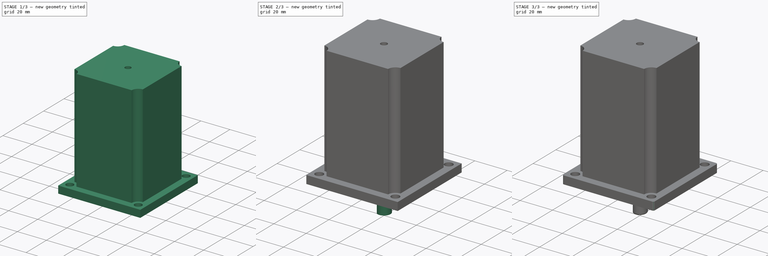
[diagram: build sequence overview — one tinted view per stage of 3, left to right]
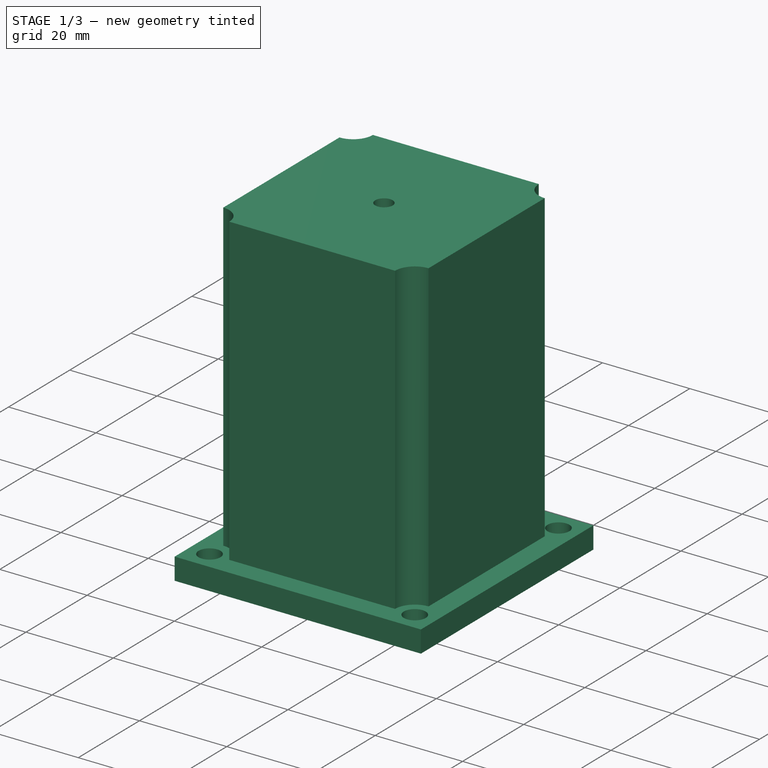
[diagram: stage 1 of 3 — iso view after this stage's code; geometry added in this stage tinted green]
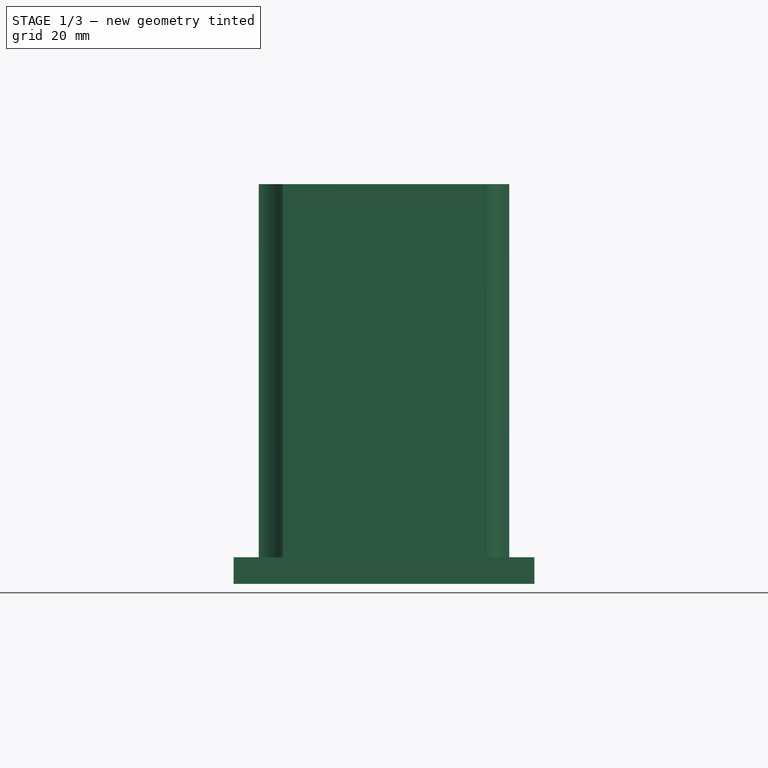
[diagram: stage 1 of 3 — front view after this stage's code; geometry added in this stage tinted green]
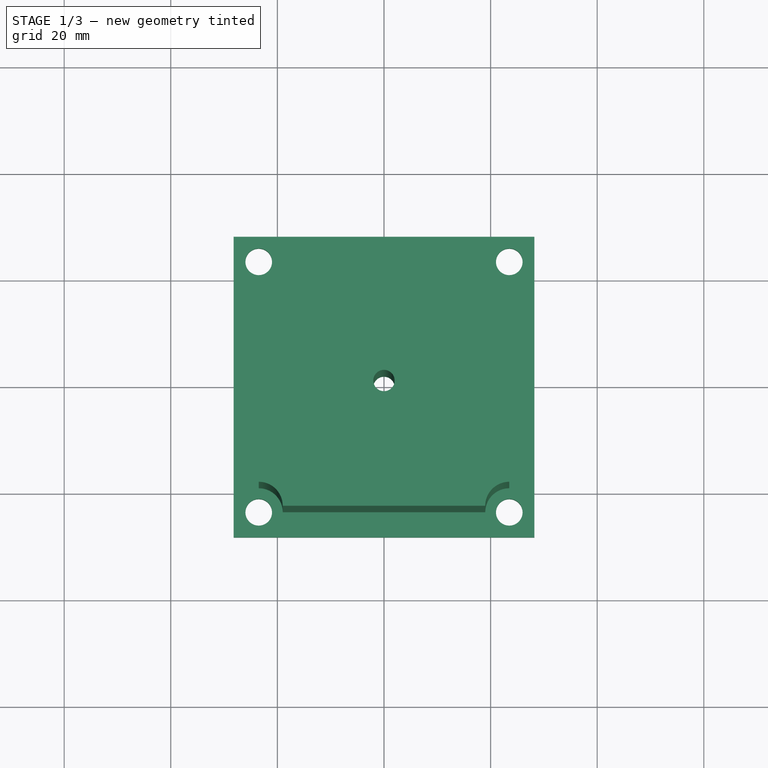
[diagram: stage 1 of 3 — top view after this stage's code; geometry added in this stage tinted green]
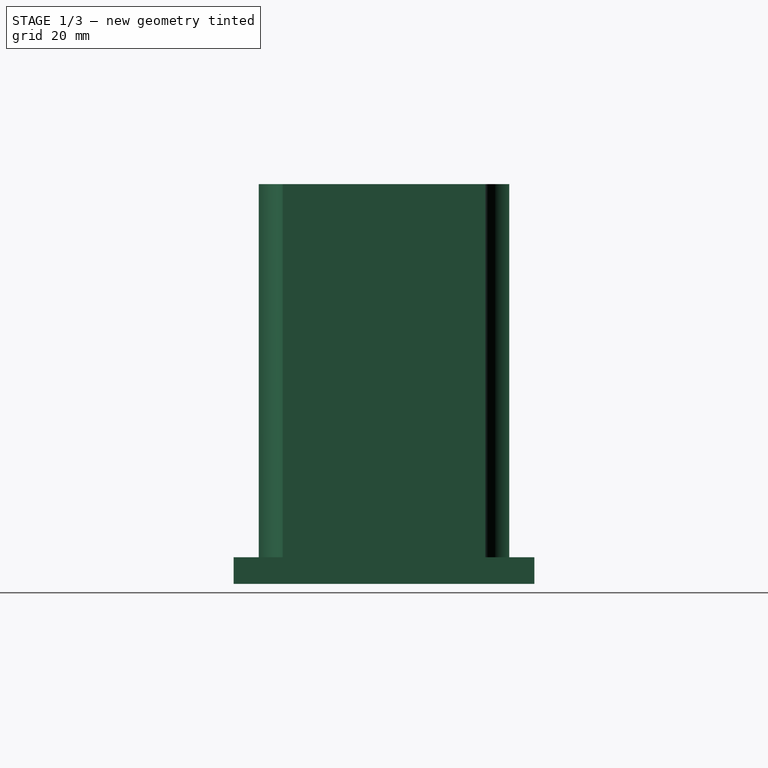
[diagram: stage 1 of 3 — right view after this stage's code; geometry added in this stage tinted green]
FCSTD DOCUMENT  (FreeCAD 0.19R24276 (Git))
Label: Nema_23_L76_temp
License: All rights reserved
LicenseURL: http://en.wikipedia.org/wiki/All_rights_reserved
objects: Sketcher::SketchObject×5, PartDesign::Pad×4, PartDesign::Fillet×2, PartDesign::Pocket×1, PartDesign::Body×1
note: 20 computed .brp shape members not serialized (recipe doc carries the construction recipe); baked Part::Feature solids carry a one-line shape summary decoded from their .brp

FEATURE [Sketcher::SketchObject] Sketch
  FullyConstrained = true
  MapMode = 5
  Support = -> [XY_Plane]
  sketch-geometry (15):
    g0: LineSegment StartX=23.5 StartY=23.5 StartZ=0 EndX=-23.5 EndY=23.5 EndZ=0
    g1: LineSegment StartX=-23.5 StartY=23.5 StartZ=0 EndX=-23.5 EndY=-23.5 EndZ=0
    g2: LineSegment StartX=-23.5 StartY=-23.5 StartZ=0 EndX=23.5 EndY=-23.5 EndZ=0
    g3: LineSegment StartX=23.5 StartY=-23.5 StartZ=0 EndX=23.5 EndY=23.5 EndZ=0
    g4: Circle CenterX=0 CenterY=0 CenterZ=0 NormalX=0 NormalY=0 NormalZ=1 AngleXU=0 Radius=33.234
    g5: LineSegment StartX=28.2 StartY=-28.2 StartZ=0 EndX=28.2 EndY=28.2 EndZ=0
    g6: LineSegment StartX=28.2 StartY=28.2 StartZ=0 EndX=-28.2 EndY=28.2 EndZ=0
    g7: LineSegment StartX=-28.2 StartY=28.2 StartZ=0 EndX=-28.2 EndY=-28.2 EndZ=0
    g8: LineSegment StartX=-28.2 StartY=-28.2 StartZ=0 EndX=28.2 EndY=-28.2 EndZ=0
    g9: Circle CenterX=0 CenterY=0 CenterZ=0 NormalX=0 NormalY=0 NormalZ=1 AngleXU=0 Radius=39.8808
    g10: Circle CenterX=-23.5 CenterY=23.5 CenterZ=0 NormalX=0 NormalY=0 NormalZ=1 AngleXU=0 Radius=2.5
    g11: Circle CenterX=23.5 CenterY=23.5 CenterZ=0 NormalX=0 NormalY=0 NormalZ=1 AngleXU=0 Radius=2.5
    g12: Circle CenterX=-23.5 CenterY=-23.5 CenterZ=0 NormalX=0 NormalY=0 NormalZ=1 AngleXU=0 Radius=2.5
    g13: Circle CenterX=23.5 CenterY=-23.5 CenterZ=0 NormalX=0 NormalY=0 NormalZ=1 AngleXU=0 Radius=2.5
    g14: Circle CenterX=0 CenterY=0 CenterZ=0 NormalX=0 NormalY=0 NormalZ=1 AngleXU=0 Radius=2
  constraints (38):
    c: Coincident(g0,g1)
    c: Coincident(g1,g2)
    c: Coincident(g2,g3)
    c: Coincident(g3,g0)
    c: Equal(g0,g1)
    c: Equal(g0,g2)
    c: Equal(g0,g3)
    c: PointOnObject(g0,g4)
    c: PointOnObject(g1,g4)
    c: PointOnObject(g2,g4)
    c: PointOnObject(g3,g4)
    c: Coincident(g4,g-1)
    c: Horizontal(g0)
    c: DistanceX(g2,g2) = 47
    c: Coincident(g5,g6)
    c: Coincident(g6,g7)
    c: Coincident(g7,g8)
    c: Coincident(g8,g5)
    c: Equal(g5,g6)
    c: Equal(g5,g7)
    c: Equal(g5,g8)
    c: PointOnObject(g5,g9)
    c: PointOnObject(g6,g9)
    c: PointOnObject(g7,g9)
    c: PointOnObject(g8,g9)
    c: Coincident(g9,g-1)
    c: DistanceX(g8,g8) = 56.4
    c: Horizontal(g8)
    c: Coincident(g10,g0)
    c: Coincident(g11,g0)
    c: Coincident(g12,g1)
    c: Coincident(g13,g2)
    c: Diameter(g10) = 5
    c: Equal(g10,g12)
    c: Equal(g10,g13)
    c: Equal(g10,g11)
    c: Coincident(g14,g-1)
    c: Diameter(g14) = 4
FEATURE [PartDesign::Pad] Pad
  Direction = (1,1,1)
  Length = 5
  Length2 = 100
  Profile = -> Sketch
  Type = 0
FEATURE [Sketcher::SketchObject] Sketch001
  FullyConstrained = false
  MapMode = 5
  Placement = pos=(0,0,5) rot=(0,0,1;0rad)
  Support = -> [Pad]
  sketch-geometry (40):
    g0: LineSegment StartX=28.2 StartY=28.2 StartZ=0 EndX=-28.2 EndY=28.2 EndZ=0
    g1: LineSegment StartX=-28.2 StartY=28.2 StartZ=0 EndX=-28.2 EndY=-19 EndZ=0
    g2: LineSegment StartX=-19 StartY=-28.2 StartZ=0 EndX=28.2 EndY=-28.2 EndZ=0
    g3: LineSegment StartX=28.2 StartY=-28.2 StartZ=0 EndX=28.2 EndY=28.2 EndZ=0
    g4: Circle CenterX=0 CenterY=0 CenterZ=0 NormalX=0 NormalY=0 NormalZ=1 AngleXU=0 Radius=39.8808
    g5: LineSegment StartX=23.5 StartY=23.5 StartZ=0 EndX=-23.5 EndY=23.5 EndZ=0
    g6: LineSegment StartX=-23.5 StartY=23.5 StartZ=0 EndX=-23.5 EndY=-23.5 EndZ=0
    g7: LineSegment StartX=-23.5 StartY=-23.5 StartZ=0 EndX=23.5 EndY=-23.5 EndZ=0
    g8: LineSegment StartX=23.5 StartY=-23.5 StartZ=0 EndX=23.5 EndY=23.5 EndZ=0
    g9: Circle CenterX=0 CenterY=0 CenterZ=0 NormalX=0 NormalY=0 NormalZ=1 AngleXU=0 Radius=33.234
    g10: Circle CenterX=-23.5 CenterY=23.5 CenterZ=0 NormalX=0 NormalY=0 NormalZ=1 AngleXU=0 Radius=4.5
    g11: LineSegment StartX=0 StartY=0 StartZ=0 EndX=-23.5 EndY=23.5 EndZ=0
    g12: ArcOfCircle CenterX=-23.5 CenterY=-23.5 CenterZ=0 NormalX=0 NormalY=0 NormalZ=1 AngleXU=0 Radius=4.5 StartAngle=1.3e-15 EndAngle=1.5708
    g13: ArcOfCircle CenterX=23.5 CenterY=-23.5 CenterZ=0 NormalX=0 NormalY=0 NormalZ=1 AngleXU=0 Radius=4.5 StartAngle=1.5708 EndAngle=3.14159
    g14: LineSegment StartX=-23.5 StartY=-19 StartZ=0 EndX=-28.2 EndY=-19 EndZ=0
    g15: LineSegment StartX=-19 StartY=-23.5 StartZ=0 EndX=-19 EndY=-28.2 EndZ=0
    g16: LineSegment StartX=-23.5 StartY=-23.5 StartZ=0 EndX=-19 EndY=-23.5 EndZ=0
    g17: ArcOfCircle CenterX=23.5 CenterY=-23.5 CenterZ=0 NormalX=0 NormalY=0 NormalZ=1 AngleXU=0 Radius=4.5 StartAngle=1.5708 EndAngle=3.14159
    g18: LineSegment StartX=23.5 StartY=-19 StartZ=0 EndX=28.2 EndY=-19 EndZ=0
    g19: LineSegment StartX=19 StartY=-23.5 StartZ=0 EndX=19 EndY=-28.2 EndZ=0
    g20: LineSegment StartX=23.5 StartY=-23.5 StartZ=0 EndX=19 EndY=-23.5 EndZ=0
    g21: LineSegment StartX=23.5 StartY=-23.5 StartZ=0 EndX=23.5 EndY=-19 EndZ=0
    g22: LineSegment StartX=-19 StartY=28.2 StartZ=0 EndX=28.2 EndY=28.2 EndZ=0
    g23: LineSegment StartX=-23.5 StartY=23.5 StartZ=0 EndX=23.5 EndY=23.5 EndZ=0
    g24: ArcOfCircle CenterX=-23.5 CenterY=23.5 CenterZ=0 NormalX=0 NormalY=0 NormalZ=1 AngleXU=0 Radius=4.5 StartAngle=4.71239 EndAngle=6.28319
    g25: LineSegment StartX=-23.5 StartY=19 StartZ=0 EndX=-28.2 EndY=19 EndZ=0
    g26: LineSegment StartX=-19 StartY=23.5 StartZ=0 EndX=-19 EndY=28.2 EndZ=0
    g27: LineSegment StartX=-23.5 StartY=23.5 StartZ=0 EndX=-19 EndY=23.5 EndZ=0
    g28: LineSegment StartX=23.5 StartY=23.5 StartZ=0 EndX=19 EndY=23.5 EndZ=0
    g29: LineSegment StartX=23.5 StartY=23.5 StartZ=0 EndX=23.5 EndY=19 EndZ=0
    g30: LineSegment StartX=-19 StartY=-23.5 StartZ=0 EndX=19 EndY=-23.5 EndZ=0
    g31: LineSegment StartX=23.5 StartY=-19 StartZ=0 EndX=23.5 EndY=19 EndZ=0
    g32: LineSegment StartX=19 StartY=23.5 StartZ=0 EndX=-19 EndY=23.5 EndZ=0
    g33: LineSegment StartX=-23.5 StartY=19 StartZ=0 EndX=-23.5 EndY=-19 EndZ=0
    g34: Circle CenterX=0 CenterY=0 CenterZ=0 NormalX=0 NormalY=0 NormalZ=1 AngleXU=0 Radius=2
    g35: LineSegment StartX=-23.5 StartY=-19 StartZ=0 EndX=-23.5 EndY=19 EndZ=0
    g36: LineSegment StartX=23.5 StartY=-19 StartZ=0 EndX=23.5 EndY=19 EndZ=0
    g37: LineSegment StartX=19 StartY=-23.5 StartZ=0 EndX=-19 EndY=-23.5 EndZ=0
    g38: ArcOfCircle CenterX=23.5 CenterY=23.5 CenterZ=0 NormalX=0 NormalY=0 NormalZ=1 AngleXU=0 Radius=4.5 StartAngle=3.14159 EndAngle=4.71239
    g39: LineSegment StartX=-19 StartY=23.5 StartZ=0 EndX=19 EndY=23.5 EndZ=0
  constraints (103):
    c: Coincident(g0,g1)
    c: Coincident(g2,g3)
    c: Coincident(g3,g0)
    c: Equal(g0,g3)
    c: PointOnObject(g0,g4)
    c: PointOnObject(g2,g4)
    c: PointOnObject(g3,g4)
    c: Coincident(g4,g-1)
    c: Horizontal(g0)
    c: Coincident(g5,g6)
    c: Coincident(g6,g7)
    c: Coincident(g7,g8)
    c: Coincident(g8,g5)
    c: Equal(g5,g6)
    c: Equal(g5,g7)
    c: Equal(g5,g8)
    c: PointOnObject(g5,g9)
    c: PointOnObject(g6,g9)
    c: PointOnObject(g7,g9)
    c: PointOnObject(g8,g9)
    c: Coincident(g9,g-1)
    c: Horizontal(g5)
    c: DistanceX(g7,g7) = 47
    c: Coincident(g10,g5)
    c: Coincident(g11,g-1)
    c: Coincident(g11,g5)
    c: Diameter(g10) = 9
    c: Coincident(g12,g6)
    c: Coincident(g13,g7)
    c: Equal(g10,g13)
    c: Horizontal(g14)
    c: Vertical(g14,g6)
    c: PointOnObject(g14,g12)
    c: Vertical(g15)
    c: Coincident(g16,g6)
    c: PointOnObject(g16,g12)
    c: Coincident(g15,g16)
    c: Horizontal(g16)
    c: Coincident(g15,g2)
    c: PointOnObject(g12,g6)
    c: PointOnObject(g12,g7)
    c: Coincident(g14,g1)
    c: Horizontal(g18)
    c: Vertical(g19)
    c: Coincident(g19,g20)
    c: Horizontal(g20)
    c: Coincident(g7,g17)
    c: Equal(g17,g12)
    c: Horizontal(g2,g19)
    c: Vertical(g2,g18)
    c: Coincident(g17,g18)
    c: Coincident(g17,g19)
    c: Horizontal(g17,g17)
    c: Horizontal(g2,g2)
    c: Vertical(g3)
    c: DistanceX(g1,g18) = 56.4
    c: Vertical(g1)
    c: Coincident(g21,g17)
    c: Coincident(g21,g17)
    c: Vertical(g21)
    c: PointOnObject(g13,g7)
    c: PointOnObject(g13,g8)
    c: Horizontal(g25)
    c: Vertical(g26)
    c: PointOnObject(g27,g24)
    c: Coincident(g26,g27)
    c: Horizontal(g27)
    c: Coincident(g26,g22)
    c: PointOnObject(g24,g23)
    c: Horizontal(g28)
    c: Vertical(g29)
    c: PointOnObject(g28,g23)
    c: Vertical(g25,g1)
    c: Equal(g12,g24)
    c: Coincident(g24,g25)
    c: Vertical(g24,g12)
    c: Coincident(g5,g23)
    c: Coincident(g5,g27)
    c: Coincident(g24,g5)
    c: Horizontal(g23)
    c: Vertical(g28,g13)
    c: Horizontal(g0,g22)
    c: Coincident(g30,g12)
    c: Coincident(g30,g13)
    c: Coincident(g31,g13)
    c: Coincident(g33,g24)
    c: Coincident(g32,g24)
    c: Coincident(g33,g12)
    c: Coincident(g34,g-1)
    c: Diameter(g34) = 4
    c: Coincident(g35,g12)
    c: Coincident(g35,g24)
    c: PointOnObject(g36,g8)
    c: Coincident(g36,g13)
    c: Coincident(g37,g13)
    c: Coincident(g37,g12)
    c: Coincident(g38,g5)
    c: PointOnObject(g38,g5)
    c: Equal(g24,g38)
    c: Coincident(g36,g38)
    c: Equal(g24,g10)
    c: Coincident(g39,g24)
    c: Coincident(g39,g38)
FEATURE [PartDesign::Pad] Pad001
  BaseFeature = -> Pad
  Direction = (1,1,1)
  Length = 70
  Length2 = 100
  Profile = -> Sketch001
  Type = 0
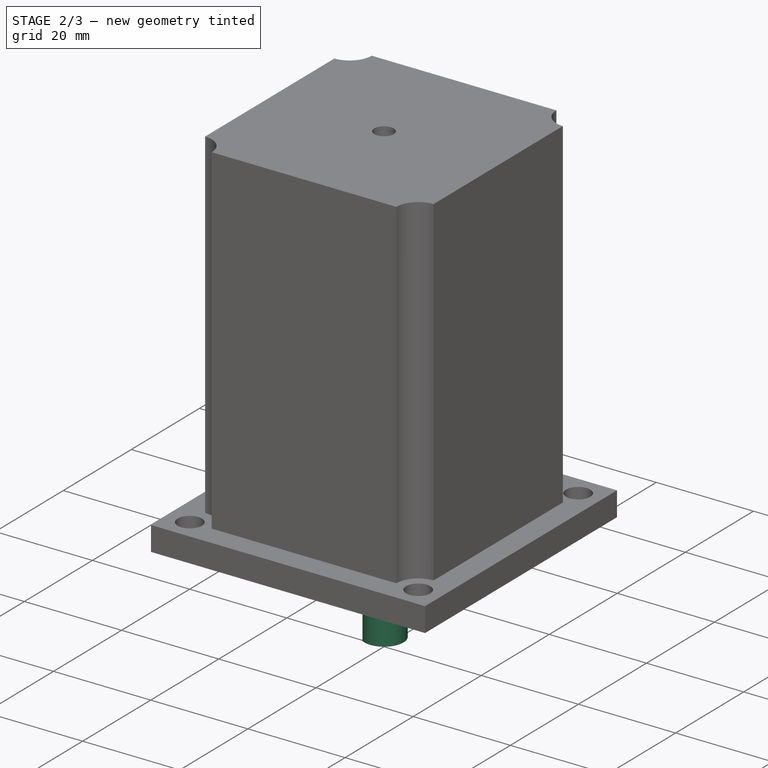
[diagram: stage 2 of 3 — iso view after this stage's code; geometry added in this stage tinted green]
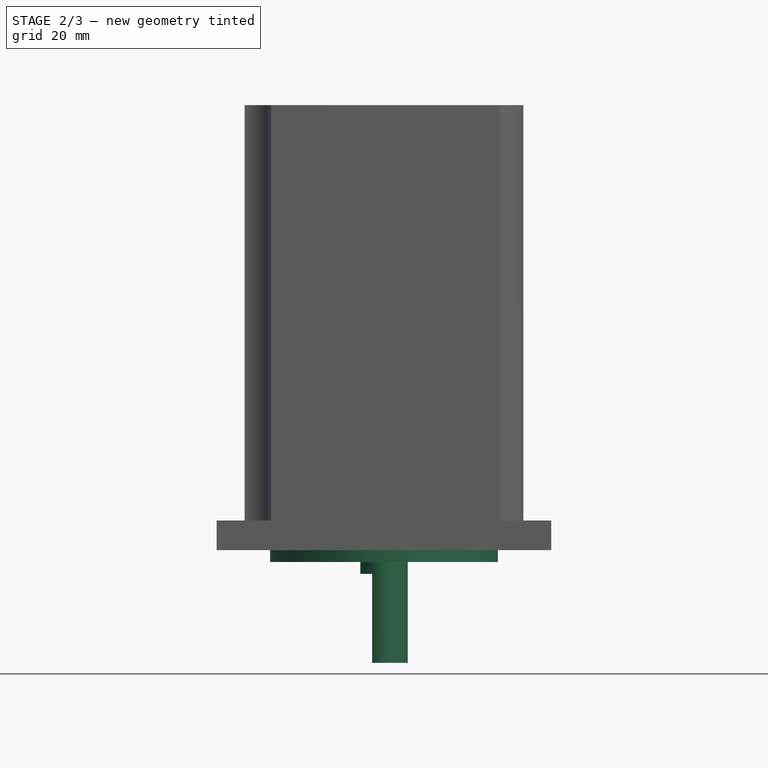
[diagram: stage 2 of 3 — front view after this stage's code; geometry added in this stage tinted green]
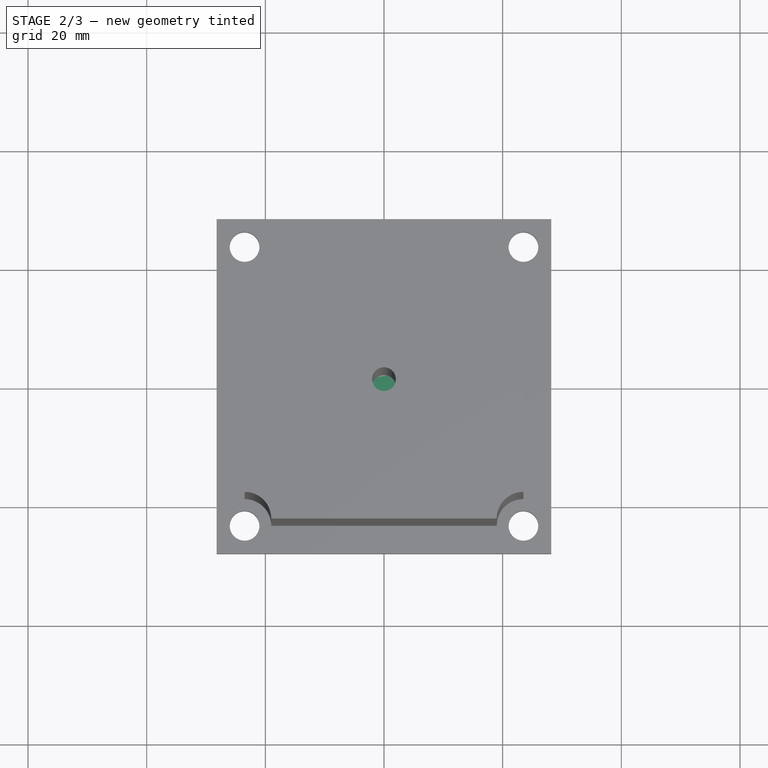
[diagram: stage 2 of 3 — top view after this stage's code; geometry added in this stage tinted green]
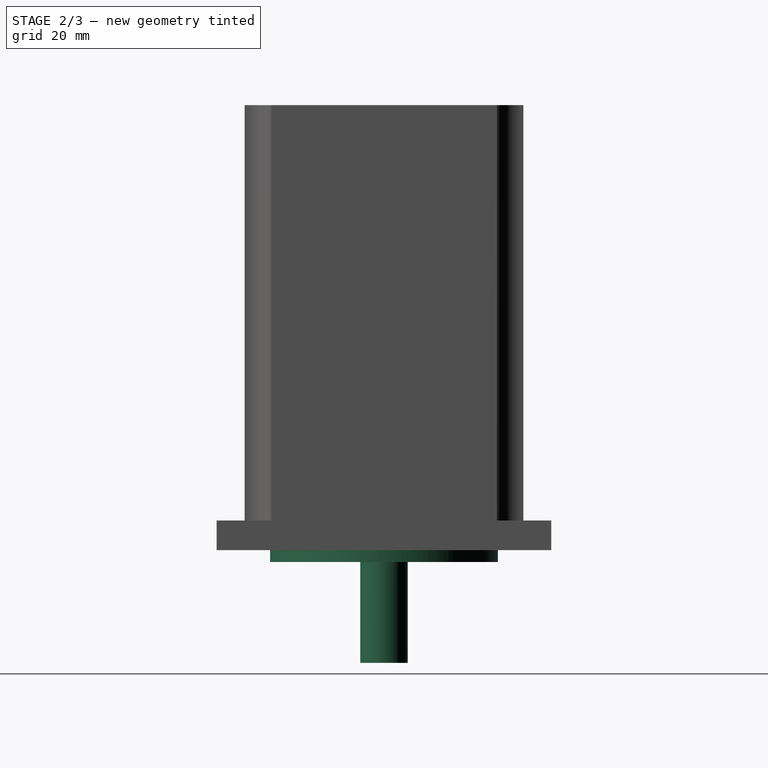
[diagram: stage 2 of 3 — right view after this stage's code; geometry added in this stage tinted green]
FEATURE [Sketcher::SketchObject] Sketch002
  FullyConstrained = true
  MapMode = 5
  Placement = pos=(0,0,0) rot=(1,0,0;3.14159rad)
  Support = -> [Pad001]
  sketch-geometry (2):
    g0: Circle CenterX=0 CenterY=0 CenterZ=0 NormalX=0 NormalY=0 NormalZ=1 AngleXU=0 Radius=19.2
    g1: Circle CenterX=0 CenterY=0 CenterZ=0 NormalX=0 NormalY=0 NormalZ=1 AngleXU=0 Radius=5
  constraints (4):
    c: Coincident(g0,g-1)
    c: Diameter(g0) = 38.4
    c: Coincident(g1,g0)
    c: Diameter(g1) = 10
FEATURE [PartDesign::Pad] Pad002
  BaseFeature = -> Pad001
  Direction = (1,1,1)
  Length = 2
  Length2 = 100
  Profile = -> Sketch002
  Type = 0
FEATURE [Sketcher::SketchObject] Sketch004
  FullyConstrained = true
  MapMode = 5
  Placement = pos=(0,0,-19) rot=(1,0,0;3.14159rad)
  sketch-geometry (3):
    g0: ArcOfCircle CenterX=0 CenterY=0 CenterZ=0 NormalX=0 NormalY=0 NormalZ=1 AngleXU=0 Radius=4 StartAngle=2.0944 EndAngle=4.18879
    g1: LineSegment StartX=-2 StartY=3.4641 StartZ=0 EndX=-2 EndY=-3.4641 EndZ=0
    g2: LineSegment StartX=0 StartY=0 StartZ=0 EndX=4 EndY=0 EndZ=0
  constraints (9):
    c: Coincident(g0,g-1)
    c: Diameter(g0) = 8
    c: Vertical(g1)
    c: Coincident(g2,g-1)
    c: Horizontal(g2)
    c: DistanceX(g1,g2) = 6
    c: Coincident(g0,g1)
    c: Coincident(g0,g1)
    c: DistanceX(g0,g2) = 4
FEATURE [Sketcher::SketchObject] Sketch005
  FullyConstrained = true
  MapMode = 5
  Placement = pos=(0,0,0) rot=(1,0,0;3.14159rad)
  Support = -> [Pad002]
  sketch-geometry (1):
    g0: Circle CenterX=0 CenterY=0 CenterZ=0 NormalX=0 NormalY=0 NormalZ=1 AngleXU=0 Radius=4
  constraints (2):
    c: Coincident(g0,g-1)
    c: Diameter(g0) = 8
FEATURE [PartDesign::Pad] Pad003
  BaseFeature = -> Pad002
  Direction = (1,1,1)
  Length = 19
  Length2 = 100
  Profile = -> Sketch005
  Type = 0
FEATURE [PartDesign::Pocket] Pocket
  BaseFeature = -> Pad003
  Length = 15
  Length2 = 100
  Profile = -> Sketch004
  Type = 0
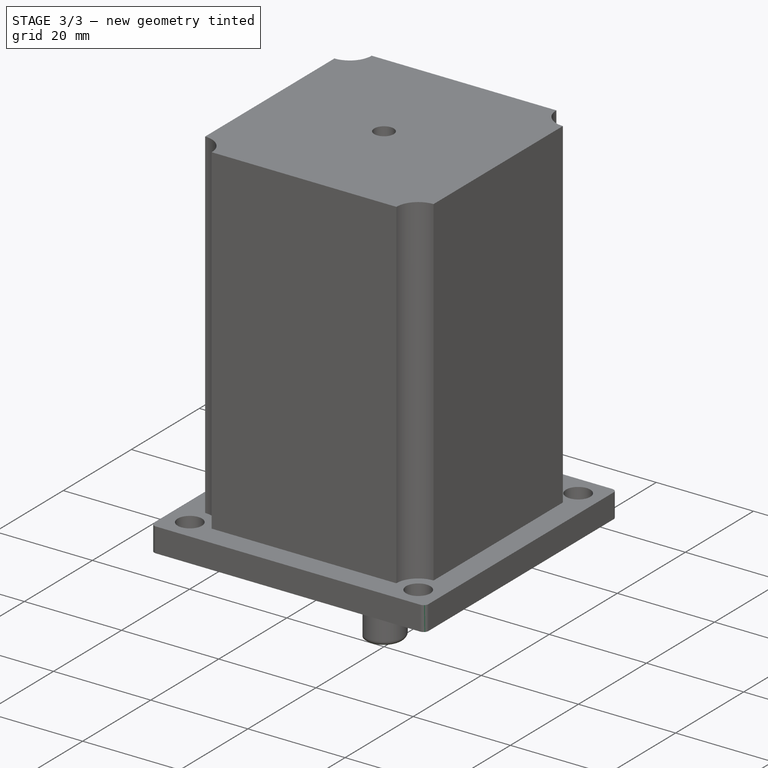
[diagram: stage 3 of 3 — iso view after this stage's code; geometry added in this stage tinted green]
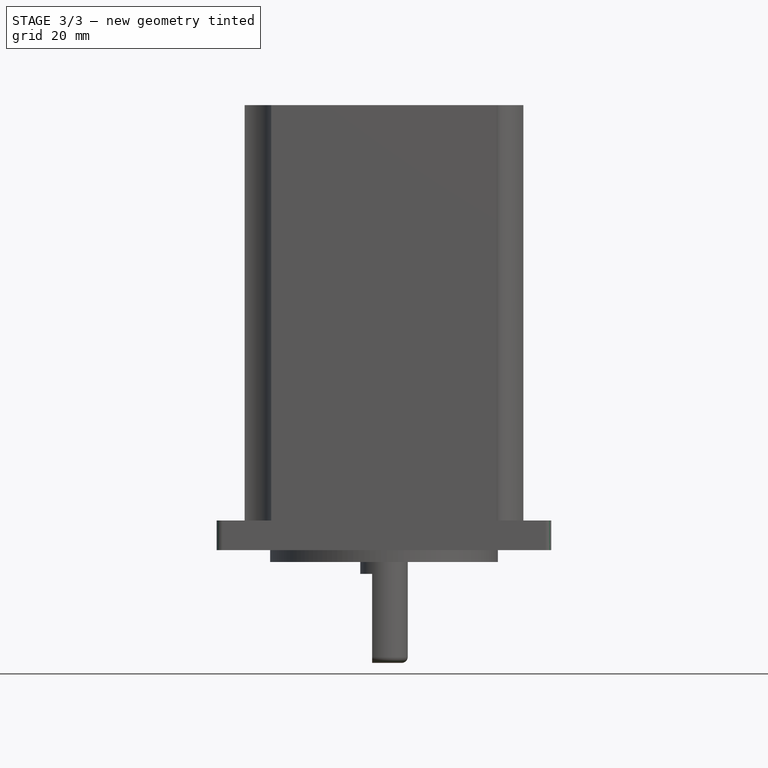
[diagram: stage 3 of 3 — front view after this stage's code; geometry added in this stage tinted green]
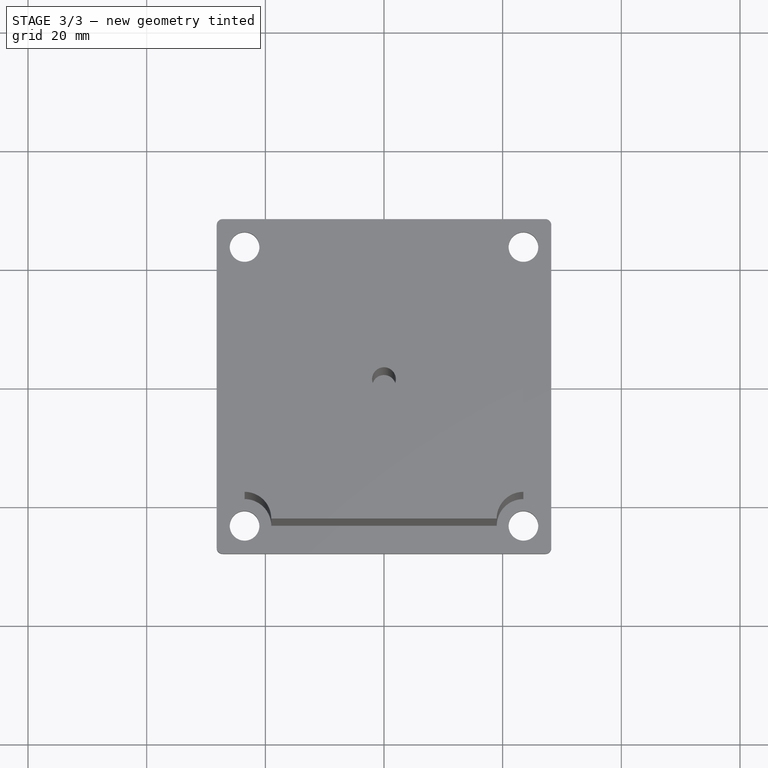
[diagram: stage 3 of 3 — top view after this stage's code; geometry added in this stage tinted green]
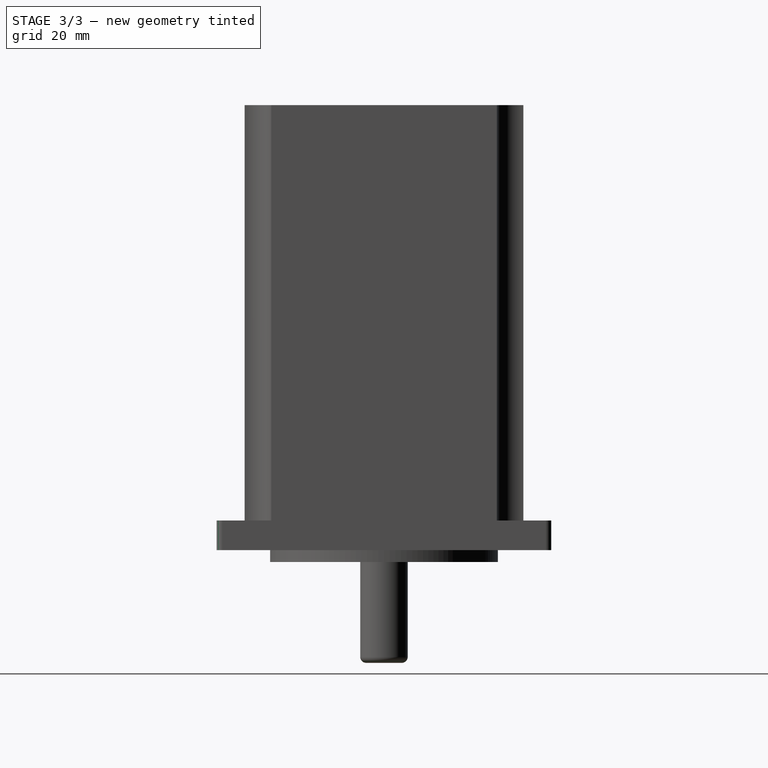
[diagram: stage 3 of 3 — right view after this stage's code; geometry added in this stage tinted green]
FEATURE [PartDesign::Fillet] Fillet
  Base = -> Pocket [Edge8,Edge5,Edge2,Edge1]
  BaseFeature = -> Pocket
  Radius = 1
  SupportTransform = false
FEATURE [PartDesign::Fillet] Fillet001
  Base = -> Fillet [Edge74]
  BaseFeature = -> Fillet
  Radius = 1
  SupportTransform = false
FEATURE [PartDesign::Body] Body
  Group = -> [Sketch,Pad,Sketch001,Pad001,Sketch002,Pad002,Sketch004,Sketch005,Pad003,Pocket,Fillet,Fillet001]
  Origin = -> Origin
  Tip = -> Fillet001
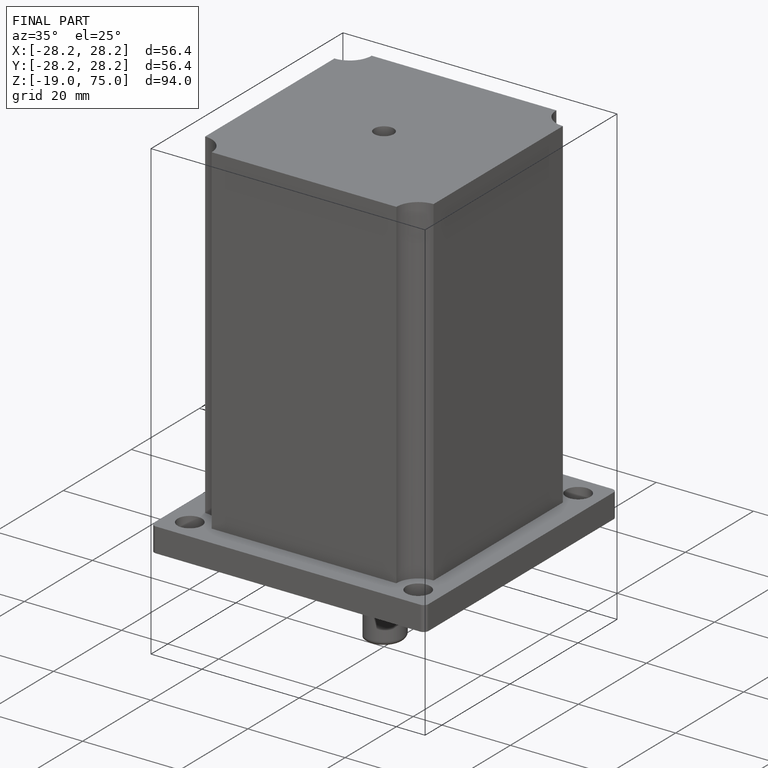
[diagram: finished part — iso view with bounding-box wireframe]
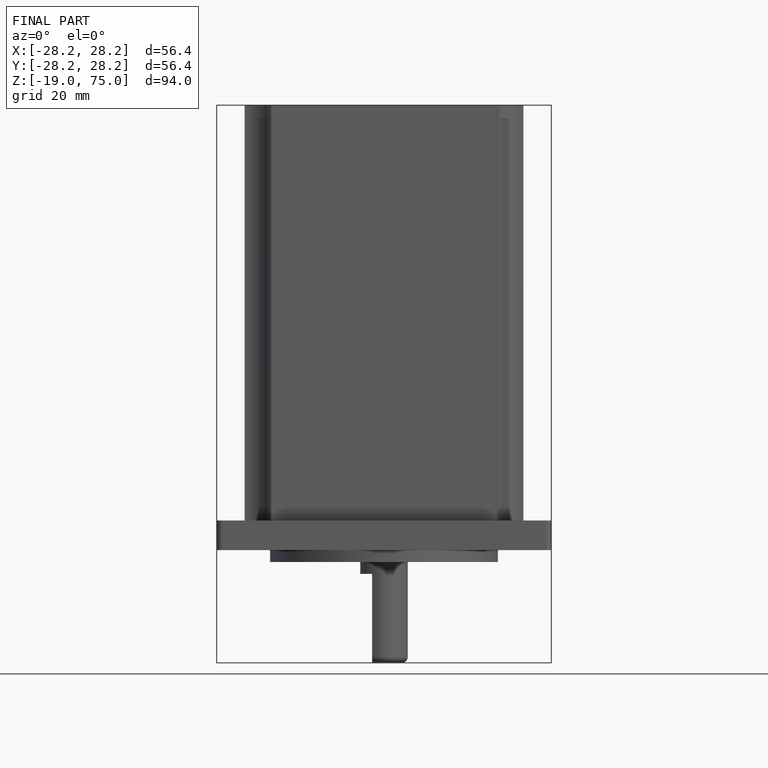
[diagram: finished part — front view with bounding-box wireframe]
